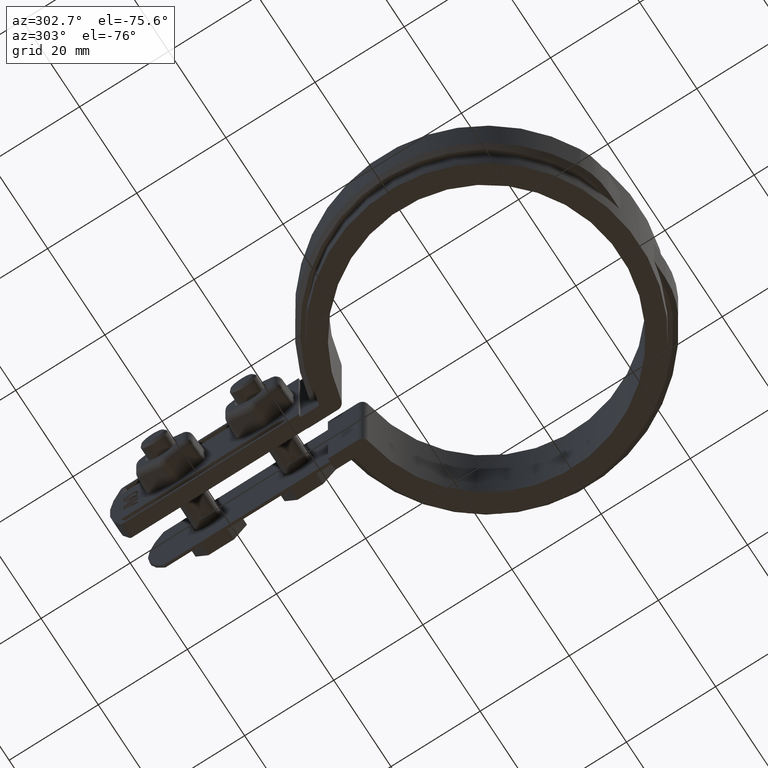
[diagram: clean part render]
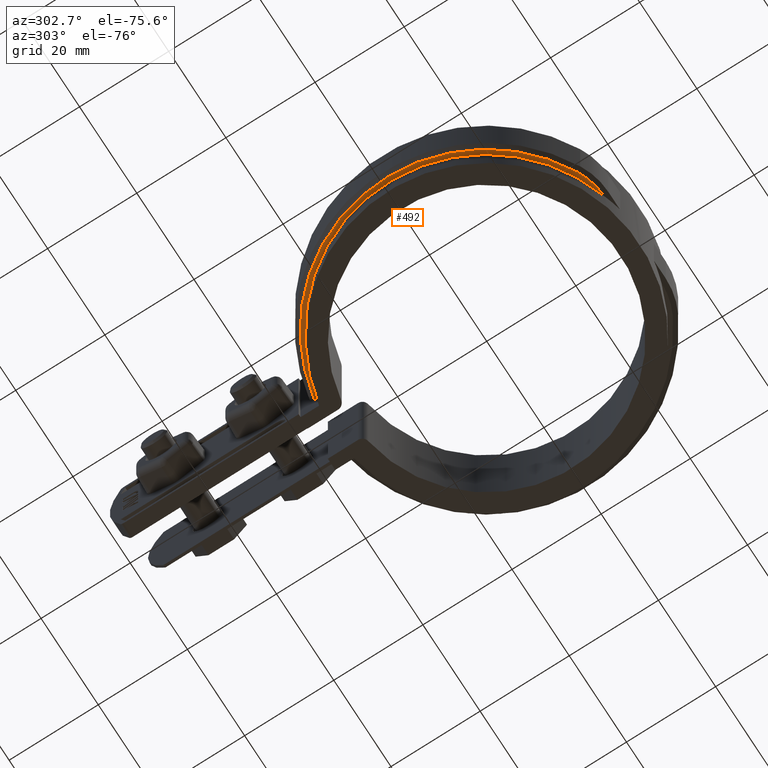
[diagram: same view with one face highlighted and labeled with its STEP entity id]
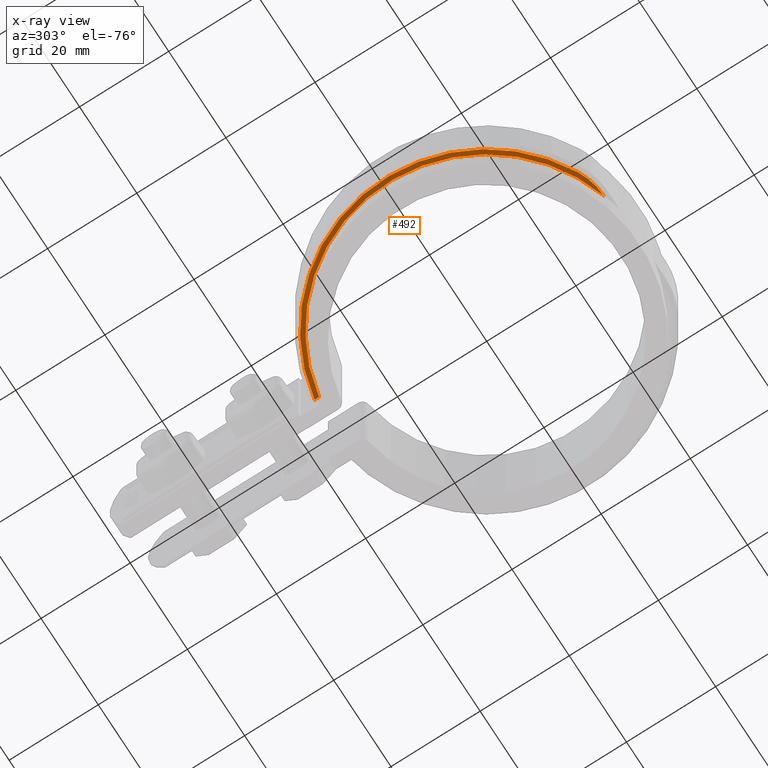
[diagram: x-ray of the same camera — body ghosted, the highlighted face saturated]
A machine part, auxiliary view. The second image highlights one B-rep face of the part: STEP entity #492.
The next image is the same camera in x-ray: the body ghosted, the highlighted face saturated — about 0% of this face is hidden behind the body in this view.
In plain terms, the highlighted planar face has unit normal (0, 0, -1).
Its self-contained STEP definition (entity closure, byte-faithful):
#492 = ADVANCED_FACE( '', ( #996 ), #997, .T. );
#996 = FACE_OUTER_BOUND( '', #2282, .T. );
#997 = PLANE( '', #2283 );
#2282 = EDGE_LOOP( '', ( #5253, #5254, #5255, #5256 ) );
#2283 = AXIS2_PLACEMENT_3D( '', #5257, #5258, #5259 );
#5253 = ORIENTED_EDGE( '', *, *, #7366, .F. );
#5254 = ORIENTED_EDGE( '', *, *, #7390, .T. );
#5255 = ORIENTED_EDGE( '', *, *, #7377, .T. );
#5256 = ORIENTED_EDGE( '', *, *, #7325, .F. );
#5257 = CARTESIAN_POINT( '', ( 8.67361737988404E-016, 0.000000000000000, -20.0000000000000 ) );
#5258 = DIRECTION( '', ( 0.000000000000000, 0.000000000000000, -1.00000000000000 ) );
#5259 = DIRECTION( '', ( 0.000000000000000, -1.00000000000000, 0.000000000000000 ) );
#7325 = EDGE_CURVE( '', #8476, #8478, #8479, .F. );
#7366 = EDGE_CURVE( '', #8536, #8476, #8538, .T. );
#7377 = EDGE_CURVE( '', #8554, #8478, #8555, .T. );
#7390 = EDGE_CURVE( '', #8536, #8554, #8571, .T. );
#8476 = VERTEX_POINT( '', #11871 );
#8478 = VERTEX_POINT( '', #11874 );
#8479 = LINE( '', #11875, #11876 );
#8536 = VERTEX_POINT( '', #12113 );
#8538 = CIRCLE( '', #12119, 34.2450000000000 );
#8554 = VERTEX_POINT( '', #12141 );
#8555 = CIRCLE( '', #12142, 35.2450000000000 );
#8571 = CIRCLE( '', #12188, 14.0000000000000 );
#11871 = CARTESIAN_POINT( '', ( -6.10000000000002, 33.6973296419761, -20.0000000000000 ) );
#11874 = CARTESIAN_POINT( '', ( -6.10000000000002, 34.7131102755141, -20.0000000000000 ) );
#11875 = CARTESIAN_POINT( '', ( -6.10000000000002, 37.9500000000000, -20.0000000000000 ) );
#11876 = VECTOR( '', #13956, 1000.00000000000 );
#12113 = CARTESIAN_POINT( '', ( -10.0537420905701, -32.7359480537268, -20.0000000000000 ) );
#12119 = AXIS2_PLACEMENT_3D( '', #14001, #14002, #14003 );
#12141 = CARTESIAN_POINT( '', ( -16.6156729905385, -31.0826227347611, -20.0000000000000 ) );
#12142 = AXIS2_PLACEMENT_3D( '', #14027, #14028, #14029 );
#12188 = AXIS2_PLACEMENT_3D( '', #14041, #14042, #14043 );
#13956 = DIRECTION( '', ( -6.07153216591882E-017, -1.00000000000000, 0.000000000000000 ) );
#14001 = CARTESIAN_POINT( '', ( 0.000000000000000, 0.000000000000000, -20.0000000000000 ) );
#14002 = DIRECTION( '', ( 0.000000000000000, 0.000000000000000, -1.00000000000000 ) );
#14003 = DIRECTION( '', ( -1.00000000000000, 0.000000000000000, 0.000000000000000 ) );
#14027 = CARTESIAN_POINT( '', ( 8.67361737988404E-016, 0.000000000000000, -20.0000000000000 ) );
#14028 = DIRECTION( '', ( 0.000000000000000, 0.000000000000000, -1.00000000000000 ) );
#14029 = DIRECTION( '', ( -1.00000000000000, 0.000000000000000, 0.000000000000000 ) );
#14041 = CARTESIAN_POINT( '', ( -10.0156042753296, -18.7360000000000, -20.0000000000000 ) );
#14042 = DIRECTION( '', ( 0.000000000000000, 0.000000000000000, -1.00000000000000 ) );
#14043 = DIRECTION( '', ( -1.00000000000000, 0.000000000000000, 0.000000000000000 ) );